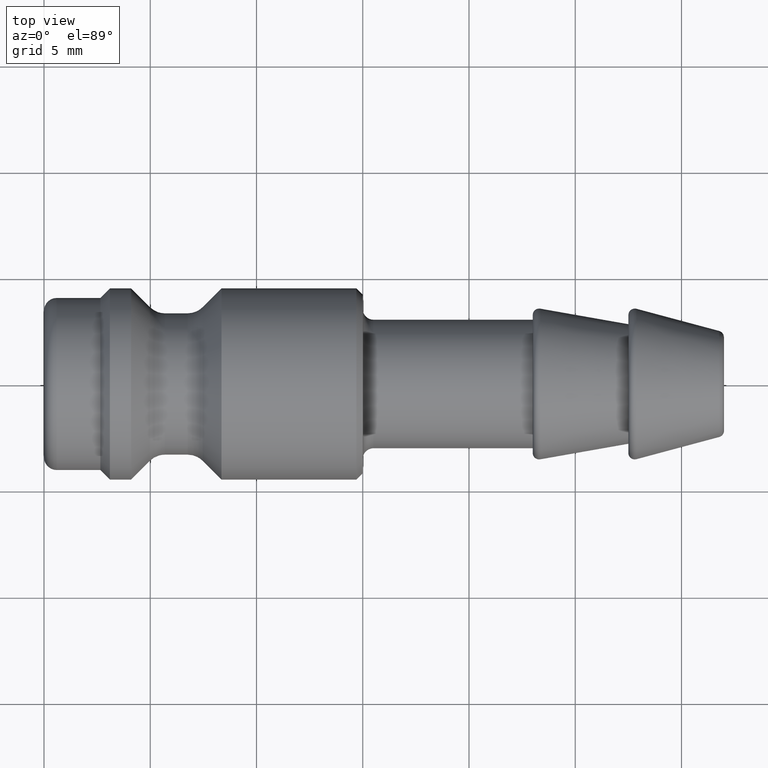
[diagram: clean part render]
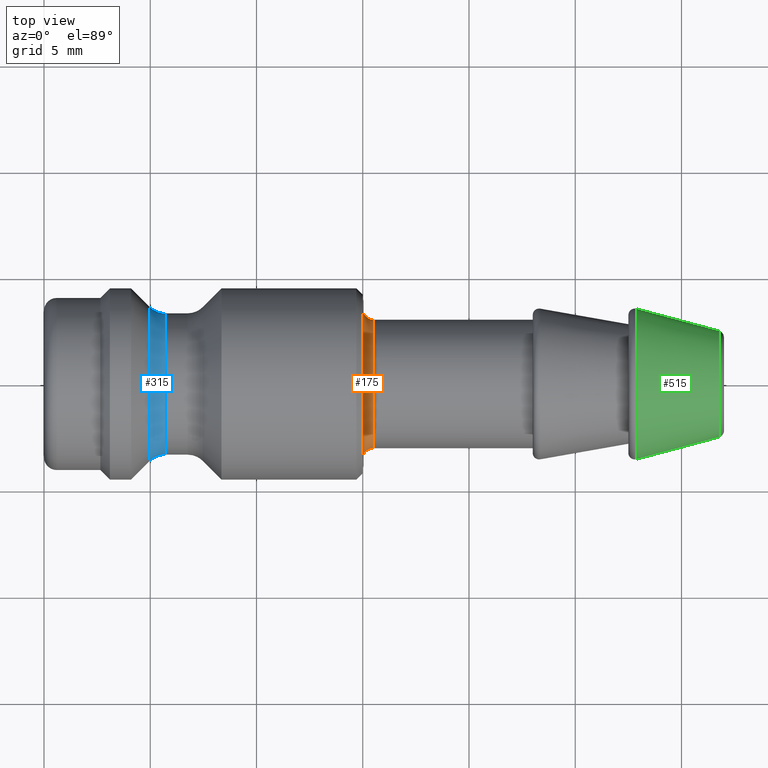
[diagram: same view with three faces highlighted in distinct colors, each labeled with its STEP entity id]
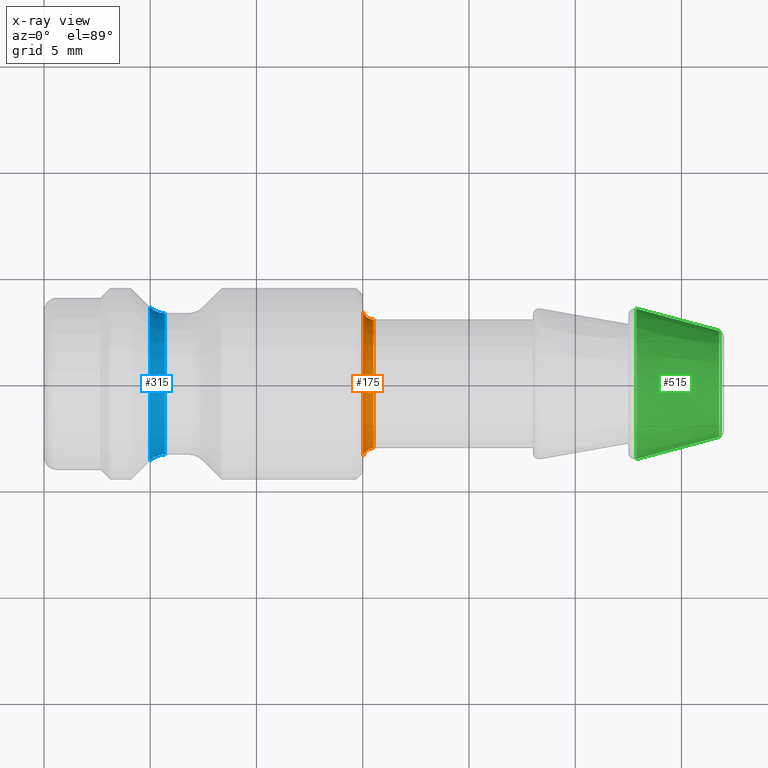
[diagram: x-ray of the same camera — body ghosted, the three highlighted faces saturated]
A machine part, top view with three faces highlighted in distinct colors.
The next image is the same camera in x-ray (body ghosted, the three faces saturated) — at least one of them is partly hidden behind the body in this view.
Their STEP definitions:

[orange] entity #175 — the highlighted toroidal blend (fillet) surface has major radius 3.525 mm and minor (blend) radius 0.5 mm.
#141=CARTESIAN_POINT('',(15.5,-3.025,0.0));
#142=VERTEX_POINT('',#141);
#143=CARTESIAN_POINT('',(15.5,0.0,0.0));
#144=DIRECTION('',(-1.0,0.0,0.0));
#145=DIRECTION('',(0.0,-1.0,0.0));
#146=AXIS2_PLACEMENT_3D('',#143,#144,#145);
#147=CIRCLE('',#146,3.025);
#148=EDGE_CURVE('',#142,#142,#147,.T.);
#156=CARTESIAN_POINT('',(15.500000000000004,0.0,0.0));
#157=DIRECTION('',(-1.0,0.0,0.0));
#158=DIRECTION('',(0.0,0.0,1.0));
#159=AXIS2_PLACEMENT_3D('',#156,#157,#158);
#160=TOROIDAL_SURFACE('',#159,3.525000000000002,0.500000000000002);
#161=CARTESIAN_POINT('',(15.0,-3.525,0.0));
#162=VERTEX_POINT('',#161);
#163=CARTESIAN_POINT('',(15.0,0.0,0.0));
#164=DIRECTION('',(-1.0,0.0,0.0));
#165=DIRECTION('',(0.0,-1.0,0.0));
#166=AXIS2_PLACEMENT_3D('',#163,#164,#165);
#167=CIRCLE('',#166,3.525);
#168=EDGE_CURVE('',#162,#162,#167,.T.);
#169=ORIENTED_EDGE('',*,*,#168,.F.);
#170=EDGE_LOOP('',(#169));
#171=FACE_OUTER_BOUND('',#170,.T.);
#172=ORIENTED_EDGE('',*,*,#148,.T.);
#173=EDGE_LOOP('',(#172));
#174=FACE_BOUND('',#173,.T.);
#175=ADVANCED_FACE('',(#171,#174),#160,.F.);

[blue] entity #315 — the highlighted toroidal blend (fillet) surface has major radius 4.325 mm and minor (blend) radius 1 mm.
#281=CARTESIAN_POINT('',(5.689213562373094,-3.325000000000001,0.0));
#282=VERTEX_POINT('',#281);
#283=CARTESIAN_POINT('',(5.689213562373094,0.0,0.0));
#284=DIRECTION('',(-1.0,0.0,0.0));
#285=DIRECTION('',(0.0,-1.0,0.0));
#286=AXIS2_PLACEMENT_3D('',#283,#284,#285);
#287=CIRCLE('',#286,3.325000000000001);
#288=EDGE_CURVE('',#282,#282,#287,.T.);
#296=CARTESIAN_POINT('',(5.689213562373091,0.0,0.0));
#297=DIRECTION('',(-1.0,0.0,0.0));
#298=DIRECTION('',(0.0,0.0,1.0));
#299=AXIS2_PLACEMENT_3D('',#296,#297,#298);
#300=TOROIDAL_SURFACE('',#299,4.324999999999996,0.999999999999995);
#301=CARTESIAN_POINT('',(4.982106781186545,-3.617893218813455,0.0));
#302=VERTEX_POINT('',#301);
#303=CARTESIAN_POINT('',(4.982106781186544,0.0,0.0));
#304=DIRECTION('',(-1.0,0.0,0.0));
#305=DIRECTION('',(0.0,-1.0,0.0));
#306=AXIS2_PLACEMENT_3D('',#303,#304,#305);
#307=CIRCLE('',#306,3.617893218813455);
#308=EDGE_CURVE('',#302,#302,#307,.T.);
#309=ORIENTED_EDGE('',*,*,#308,.F.);
#310=EDGE_LOOP('',(#309));
#311=FACE_OUTER_BOUND('',#310,.T.);
#312=ORIENTED_EDGE('',*,*,#288,.T.);
#313=EDGE_LOOP('',(#312));
#314=FACE_BOUND('',#313,.T.);
#315=ADVANCED_FACE('',(#311,#314),#300,.F.);

[green] entity #515 — the highlighted conical surface has half-angle 15 deg.
#481=CARTESIAN_POINT('',(31.777645713530763,-2.494775897405338,0.0));
#482=VERTEX_POINT('',#481);
#483=CARTESIAN_POINT('',(31.777645713530763,0.0,0.0));
#484=DIRECTION('',(-1.0,0.0,0.0));
#485=DIRECTION('',(0.0,-1.0,0.0));
#486=AXIS2_PLACEMENT_3D('',#483,#484,#485);
#487=CIRCLE('',#486,2.494775897405338);
#488=EDGE_CURVE('',#482,#482,#487,.T.);
#496=CARTESIAN_POINT('',(29.827645713530757,0.0,0.0));
#497=DIRECTION('',(-1.0,0.0,0.0));
#498=DIRECTION('',(0.0,-1.0,0.0));
#499=AXIS2_PLACEMENT_3D('',#496,#497,#498);
#500=CONICAL_SURFACE('',#499,3.017276822646029,14.999999999999993);
#501=CARTESIAN_POINT('',(27.877645713530747,-3.53977774788672,0.0));
#502=VERTEX_POINT('',#501);
#503=CARTESIAN_POINT('',(27.877645713530747,0.0,0.0));
#504=DIRECTION('',(-1.0,0.0,0.0));
#505=DIRECTION('',(0.0,-1.0,0.0));
#506=AXIS2_PLACEMENT_3D('',#503,#504,#505);
#507=CIRCLE('',#506,3.53977774788672);
#508=EDGE_CURVE('',#502,#502,#507,.T.);
#509=ORIENTED_EDGE('',*,*,#508,.F.);
#510=EDGE_LOOP('',(#509));
#511=FACE_OUTER_BOUND('',#510,.T.);
#512=ORIENTED_EDGE('',*,*,#488,.T.);
#513=EDGE_LOOP('',(#512));
#514=FACE_BOUND('',#513,.T.);
#515=ADVANCED_FACE('',(#511,#514),#500,.T.);